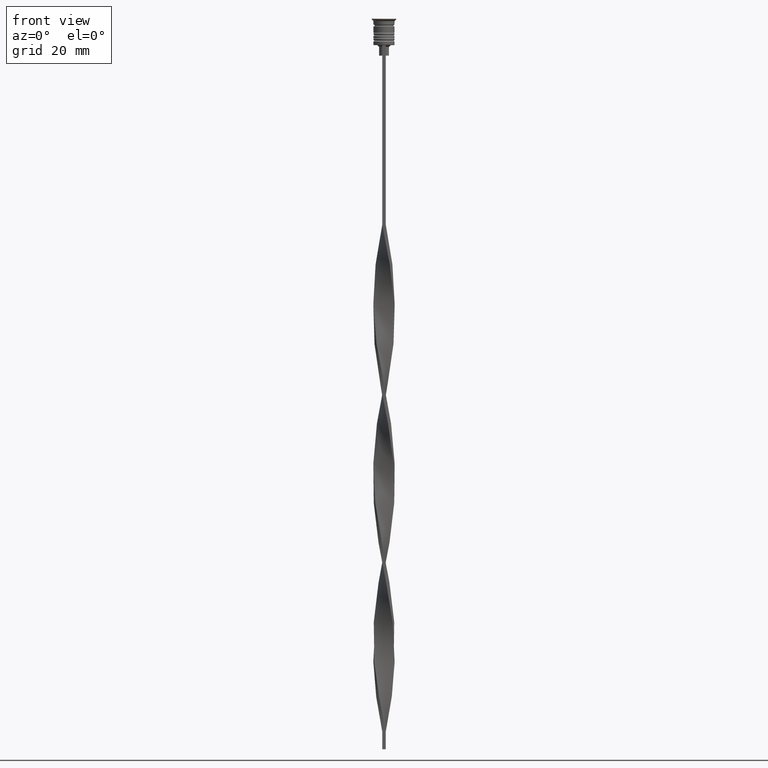
[diagram: clean part render]
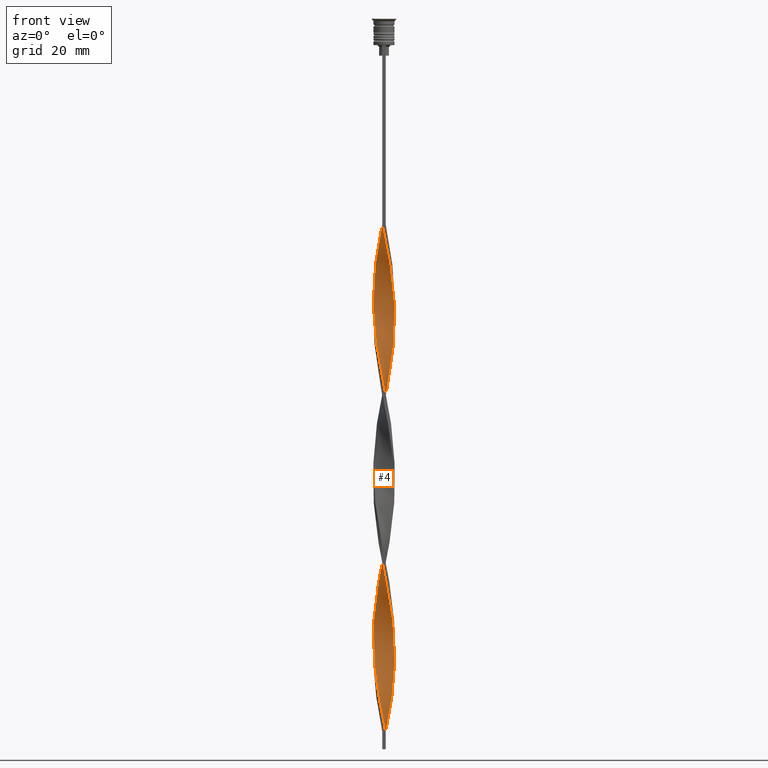
[diagram: same view with one face highlighted and labeled with its STEP entity id]
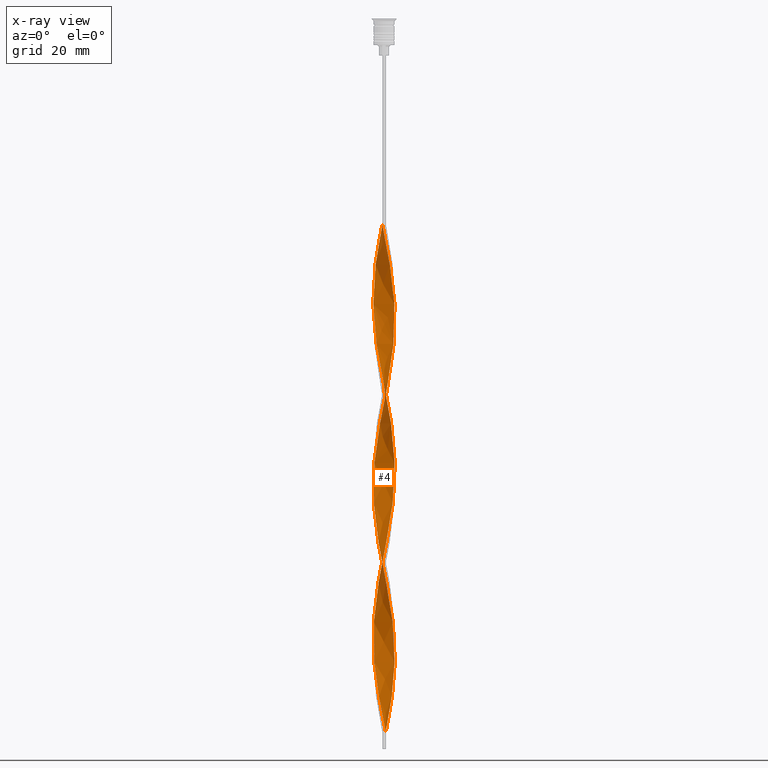
[diagram: x-ray of the same camera — body ghosted, the highlighted face saturated]
A machine part, front view. The second image highlights one B-rep face of the part: STEP entity #4.
The next image is the same camera in x-ray: the body ghosted, the highlighted face saturated — about 0% of this face is hidden behind the body in this view.
In plain terms, the highlighted face is a freeform B-spline surface patch.
Its self-contained STEP definition (entity closure, byte-faithful):
#2 = CARTESIAN_POINT ( 'NONE',  ( 0.3415330684894318236, 3.035256292798965916, -150.2647058823529278 ) ) ;
#4 = ADVANCED_FACE ( 'NONE', ( #2337 ), #1250, .T. ) ;
#10 = CARTESIAN_POINT ( 'NONE',  ( -2.748645434482415606, 1.301901791802659192, -126.2647058823529420 ) ) ;
#20 = CARTESIAN_POINT ( 'NONE',  ( 1.154187920767260067, -2.813867488627520785, -66.97058823529411598 ) ) ;
#25 = CARTESIAN_POINT ( 'NONE',  ( -1.414931142305389411, 2.706916227440719691, -116.3823529411764781 ) ) ;
#36 = CARTESIAN_POINT ( 'NONE',  ( -2.462620696176918589, 1.784796713007145375, -123.4411764705882177 ) ) ;
#44 = CARTESIAN_POINT ( 'NONE',  ( 2.825922375284401156, 1.159132575987104286, -186.9705882352941444 ) ) ;
#60 = CARTESIAN_POINT ( 'NONE',  ( 0.3415330684894317681, 3.035256292798965916, -150.2647058823528994 ) ) ;
#80 = CARTESIAN_POINT ( 'NONE',  ( -2.869284401559882625, -1.047202283617009844, -181.3235294117646959 ) ) ;
#85 = CARTESIAN_POINT ( 'NONE',  ( 3.053821120486486240, 0.06001802994261470209, -181.3235294117646959 ) ) ;
#97 = CARTESIAN_POINT ( 'NONE',  ( 1.888233802353294744, -2.400832919529793941, -71.20588235294118817 ) ) ;
#100 = CARTESIAN_POINT ( 'NONE',  ( -1.154187920767260067, -2.813867488627520785, -194.0294117647058556 ) ) ;
#119 = CARTESIAN_POINT ( 'NONE',  ( -2.004405056496874504, 2.287435325750164505, -162.9705882352940876 ) ) ;
#120 = CARTESIAN_POINT ( 'NONE',  ( 1.307479267857234895, -2.760420903407855509, -110.7352941176470438 ) ) ;
#139 = CARTESIAN_POINT ( 'NONE',  ( 2.216367154323709787, -2.101699844669203454, -116.3823529411764781 ) ) ;
#144 = CARTESIAN_POINT ( 'NONE',  ( -0.7779909387260895981, -2.953668176878986529, -153.0882352941176237 ) ) ;
#151 = CARTESIAN_POINT ( 'NONE',  ( 0.5000000000000002220, 1.000000000000000000, -202.4999999999999716 ) ) ;
#156 = CARTESIAN_POINT ( 'NONE',  ( -2.092734363651090668, -2.206912522777888963, -92.38235294117646390 ) ) ;
#178 = CARTESIAN_POINT ( 'NONE',  ( 3.053821120486486684, -0.06001802994261339758, -127.6764705882352615 ) ) ;
#190 = CARTESIAN_POINT ( 'NONE',  ( -2.908359051953456564, 0.8896334216520835891, -75.44117647058823195 ) ) ;
#200 = CARTESIAN_POINT ( 'NONE',  ( -2.908359051953456120, -0.8896334216520842553, -137.5588235294117680 ) ) ;
#209 = CARTESIAN_POINT ( 'NONE',  ( -2.216367154323710231, 2.101699844669202566, -68.38235294117646390 ) ) ;
#216 = CARTESIAN_POINT ( 'NONE',  ( -2.564815624776293657, 1.658658015008195097, -167.2058823529411882 ) ) ;
#228 = CARTESIAN_POINT ( 'NONE',  ( 2.564815624776293657, -1.658658015008194653, -119.2058823529411598 ) ) ;
#238 = CARTESIAN_POINT ( 'NONE',  ( 1.154187920767261621, 2.813867488627519897, -146.0294117647058556 ) ) ;
#257 = CARTESIAN_POINT ( 'NONE',  ( 1.888233802353293633, 2.400832919529794385, -141.7941176470588118 ) ) ;
#261 = CARTESIAN_POINT ( 'NONE',  ( 2.825922375284401156, 1.159132575987104286, -186.9705882352941444 ) ) ;
#265 = CARTESIAN_POINT ( 'NONE',  ( 2.941068349153452388, -0.7746721665374233234, -81.08823529411763786 ) ) ;
#275 = CARTESIAN_POINT ( 'NONE',  ( -1.042735103291662080, 2.857044540143419908, -157.3235294117646959 ) ) ;
#281 = CARTESIAN_POINT ( 'NONE',  ( 0.6174888838592809126, -2.978037521306644120, -64.14705882352940591 ) ) ;
#291 = CARTESIAN_POINT ( 'NONE',  ( 0.4999999999999997780, -3.000000000000000000, -202.4999999999999716 ) ) ;
#303 = CARTESIAN_POINT ( 'NONE',  ( -1.888233802353294744, 2.400832919529793497, -119.2058823529411598 ) ) ;
#318 = CARTESIAN_POINT ( 'NONE',  ( -1.414931142305389633, 2.706916227440719691, -116.3823529411764781 ) ) ;
#323 = CARTESIAN_POINT ( 'NONE',  ( 2.564815624776293657, 1.658658015008195097, -93.79411764705882604 ) ) ;
#335 = CARTESIAN_POINT ( 'NONE',  ( -2.628006467404950364, 1.556601299988307430, -124.8529411764705799 ) ) ;
#339 = CARTESIAN_POINT ( 'NONE',  ( 0.05976200360775915654, 3.040794057959990582, -151.6764705882353041 ) ) ;
#341 = CARTESIAN_POINT ( 'NONE',  ( -3.022308424554498441, 0.3400761486298386482, -78.26470588235292780 ) ) ;
#355 = CARTESIAN_POINT ( 'NONE',  ( 3.012852296747023484, -0.5021420494578375804, -82.49999999999998579 ) ) ;
#359 = CARTESIAN_POINT ( 'NONE',  ( 2.092734363651091112, 2.206912522777888519, -140.3823529411764639 ) ) ;
#366 = CARTESIAN_POINT ( 'NONE',  ( 3.022308424554498885, 0.3400761486298390923, -182.7352941176470438 ) ) ;
#382 = CARTESIAN_POINT ( 'NONE',  ( 1.792442958670039443, 2.473170806831126001, -99.44117647058823195 ) ) ;
#387 = CARTESIAN_POINT ( 'NONE',  ( -1.792442958670039221, 2.473170806831127333, -161.5588235294117680 ) ) ;
#391 = CARTESIAN_POINT ( 'NONE',  ( 1.792442958670039665, 2.473170806831126445, -195.4411764705882604 ) ) ;
#402 = CARTESIAN_POINT ( 'NONE',  ( 0.5000000000000004441, 3.000000000000000000, -106.4999999999999858 ) ) ;
#405 = CARTESIAN_POINT ( 'NONE',  ( -2.825922375284401156, 1.159132575987103841, -170.0294117647058840 ) ) ;
#406 = CARTESIAN_POINT ( 'NONE',  ( -2.908359051953456564, 0.8896334216520835891, -75.44117647058823195 ) ) ;
#409 = CARTESIAN_POINT ( 'NONE',  ( 1.307479267857235339, 2.760420903407855064, -198.2647058823529562 ) ) ;
#421 = DIRECTION ( 'NONE',  ( 0.000000000000000000, 1.000000000000000000, 0.000000000000000000 ) ) ;
#422 = CARTESIAN_POINT ( 'NONE',  ( 0.7779909387260895981, -2.953668176878985641, -107.9117647058823621 ) ) ;
#426 = CARTESIAN_POINT ( 'NONE',  ( 0.05976200360776001697, -3.040794057959990582, -157.3235294117646959 ) ) ;
#448 = CARTESIAN_POINT ( 'NONE',  ( 2.941068349153452388, -0.7746721665374233234, -177.0882352941176237 ) ) ;
#450 = CARTESIAN_POINT ( 'NONE',  ( -2.825922375284401156, -1.159132575987104063, -138.9705882352941160 ) ) ;
#463 = CARTESIAN_POINT ( 'NONE',  ( -2.628006467404950364, -1.556601299988307208, -88.14705882352940591 ) ) ;
#467 = CARTESIAN_POINT ( 'NONE',  ( 0.8934446992291309453, -2.920818749814322324, -161.5588235294117396 ) ) ;
#474 = CARTESIAN_POINT ( 'NONE',  ( -1.307479267857234673, 2.760420903407855509, -62.73529411764705799 ) ) ;
#478 = CARTESIAN_POINT ( 'NONE',  ( 1.549961113263637280, -2.616795855119490533, -112.1470588235294059 ) ) ;
#481 = CARTESIAN_POINT ( 'NONE',  ( -3.022308424554498441, -0.3400761486298386482, -134.7352941176470722 ) ) ;
#513 = CARTESIAN_POINT ( 'NONE',  ( -0.7779909387260893761, 2.953668176878985641, -59.91176470588236214 ) ) ;
#518 = CARTESIAN_POINT ( 'NONE',  ( -1.792442958670038999, 2.473170806831126889, -161.5588235294117396 ) ) ;
#522 = CARTESIAN_POINT ( 'NONE',  ( 1.651582472329342188, -2.553874573485256150, -165.7941176470588118 ) ) ;
#530 = CARTESIAN_POINT ( 'NONE',  ( 0.7779909387260895981, -2.953668176878985641, -107.9117647058823621 ) ) ;
#554 = CARTESIAN_POINT ( 'NONE',  ( -2.462620696176917701, -1.784796713007145819, -185.5588235294117396 ) ) ;
#561 = CARTESIAN_POINT ( 'NONE',  ( -2.695369000030346740, 1.408895295497649469, -72.61764705882352189 ) ) ;
#565 = CARTESIAN_POINT ( 'NONE',  ( -2.990795728622511973, -0.6201342673170625597, -136.1470588235294201 ) ) ;
#574 = CARTESIAN_POINT ( 'NONE',  ( -2.695369000030346740, 1.408895295497649469, -168.6176470588235077 ) ) ;
#579 = CARTESIAN_POINT ( 'NONE',  ( 1.792442958670039665, 2.473170806831126445, -99.44117647058823195 ) ) ;
#585 = CARTESIAN_POINT ( 'NONE',  ( -0.3415330684894314350, -3.035256292798966360, -198.2647058823529562 ) ) ;
#590 = CARTESIAN_POINT ( 'NONE',  ( 3.033336708616754418, -0.2210620097576117826, -83.91176470588234793 ) ) ;
#605 = CARTESIAN_POINT ( 'NONE',  ( -0.2220090612739108182, -3.046331823121014803, -59.91176470588236214 ) ) ;
#613 = CARTESIAN_POINT ( 'NONE',  ( 2.748645434482416050, -1.301901791802658082, -78.26470588235292780 ) ) ;
#624 = CARTESIAN_POINT ( 'NONE',  ( -1.888233802353294744, 2.400832919529793497, -119.2058823529411455 ) ) ;
#626 = CARTESIAN_POINT ( 'NONE',  ( -0.6174888838592809126, -2.978037521306644120, -196.8529411764705515 ) ) ;
#629 = CARTESIAN_POINT ( 'NONE',  ( 1.154187920767260067, -2.813867488627520785, -66.97058823529411598 ) ) ;
#642 = CARTESIAN_POINT ( 'NONE',  ( 3.012852296747023484, 0.5021420494578368032, -130.5000000000000000 ) ) ;
#655 = CARTESIAN_POINT ( 'NONE',  ( 2.390591389550001722, 1.880178929838698387, -95.20588235294117396 ) ) ;
#658 = CARTESIAN_POINT ( 'NONE',  ( -2.990795728622512417, 0.6201342673170636699, -172.8529411764705799 ) ) ;
#664 = CARTESIAN_POINT ( 'NONE',  ( 2.564815624776293657, 1.658658015008195097, -189.7941176470588118 ) ) ;
#675 = CARTESIAN_POINT ( 'NONE',  ( -0.5000000000000001110, 3.000000000000000000, -58.50000000000000000 ) ) ;
#680 = CARTESIAN_POINT ( 'NONE',  ( -2.092734363651089780, 2.206912522777889851, -120.6176470588235219 ) ) ;
#681 = ORIENTED_EDGE ( 'NONE', *, *, #2346, .F. ) ;
#684 = CARTESIAN_POINT ( 'NONE',  ( -1.651582472329342632, -2.553874573485255706, -191.2058823529411598 ) ) ;
#689 = CARTESIAN_POINT ( 'NONE',  ( 1.414931142305390077, -2.706916227440719691, -164.3823529411764923 ) ) ;
#701 = CARTESIAN_POINT ( 'NONE',  ( -2.390591389550001278, 1.880178929838698831, -165.7941176470588118 ) ) ;
#705 = CARTESIAN_POINT ( 'NONE',  ( 2.695369000030346740, 1.408895295497649247, -188.3823529411764355 ) ) ;
#713 = CARTESIAN_POINT ( 'NONE',  ( -2.092734363651090668, -2.206912522777888963, -92.38235294117646390 ) ) ;
#718 = CARTESIAN_POINT ( 'NONE',  ( -0.6174888838592809126, -2.978037521306644120, -100.8529411764705941 ) ) ;
#722 = CARTESIAN_POINT ( 'NONE',  ( -3.012852296747023484, 0.5021420494578379135, -130.5000000000000000 ) ) ;
#743 = CARTESIAN_POINT ( 'NONE',  ( 2.941068349153452388, -0.7746721665374233234, -177.0882352941176237 ) ) ;
#757 = CARTESIAN_POINT ( 'NONE',  ( -1.651582472329342632, -2.553874573485255706, -95.20588235294117396 ) ) ;
#763 = CARTESIAN_POINT ( 'NONE',  ( -1.549961113263637058, -2.616795855119490533, -148.8529411764705799 ) ) ;
#781 = CARTESIAN_POINT ( 'NONE',  ( -3.053821120486486240, -0.06001802994261502822, -133.3235294117647243 ) ) ;
#799 = CARTESIAN_POINT ( 'NONE',  ( 2.748645434482416050, -1.301901791802658082, -174.2647058823529278 ) ) ;
#808 = CARTESIAN_POINT ( 'NONE',  ( 0.4999999999999997780, -3.000000000000000000, -106.4999999999999858 ) ) ;
#833 = CARTESIAN_POINT ( 'NONE',  ( -3.033336708616754418, 0.2210620097576128096, -131.9117647058823479 ) ) ;
#846 = CARTESIAN_POINT ( 'NONE',  ( -2.869284401559882625, -1.047202283617009844, -181.3235294117646674 ) ) ;
#856 = CARTESIAN_POINT ( 'NONE',  ( -1.042735103291662080, 2.857044540143419908, -61.32352941176470296 ) ) ;
#858 = CARTESIAN_POINT ( 'NONE',  ( 3.022308424554498885, 0.3400761486298390923, -86.73529411764704378 ) ) ;
#866 = CARTESIAN_POINT ( 'NONE',  ( -0.6174888838592809126, -2.978037521306644120, -196.8529411764705515 ) ) ;
#875 = CARTESIAN_POINT ( 'NONE',  ( -0.3415330684894307689, 3.035256292798965916, -110.7352941176470438 ) ) ;
#890 = CARTESIAN_POINT ( 'NONE',  ( 2.695369000030346740, 1.408895295497649247, -92.38235294117646390 ) ) ;
#902 = CARTESIAN_POINT ( 'NONE',  ( 3.053821120486486240, 0.06001802994261470209, -85.32352941176469585 ) ) ;
#905 = CARTESIAN_POINT ( 'NONE',  ( 2.990795728622512417, -0.6201342673170634479, -124.8529411764705799 ) ) ;
#910 = CARTESIAN_POINT ( 'NONE',  ( -2.941068349153452832, 0.7746721665374232124, -129.0882352941176521 ) ) ;
#923 = CARTESIAN_POINT ( 'NONE',  ( 0.6174888838592809126, -2.978037521306644120, -64.14705882352940591 ) ) ;
#926 = CARTESIAN_POINT ( 'NONE',  ( -2.390591389550000834, -1.880178929838698831, -143.2058823529411882 ) ) ;
#934 = CARTESIAN_POINT ( 'NONE',  ( 2.695369000030346740, 1.408895295497649247, -92.38235294117646390 ) ) ;
#937 = CARTESIAN_POINT ( 'NONE',  ( -1.549961113263636836, 2.616795855119490533, -160.1470588235293917 ) ) ;
#940 = CARTESIAN_POINT ( 'NONE',  ( -1.042735103291661192, -2.857044540143419908, -151.6764705882353041 ) ) ;
#953 = CARTESIAN_POINT ( 'NONE',  ( -2.941068349153452832, -0.7746721665374231014, -179.9117647058823195 ) ) ;
#960 = CARTESIAN_POINT ( 'NONE',  ( 2.990795728622512417, 0.6201342673170633368, -184.1470588235293917 ) ) ;
#975 = CARTESIAN_POINT ( 'NONE',  ( -2.564815624776293657, 1.658658015008195097, -167.2058823529411882 ) ) ;
#979 = CARTESIAN_POINT ( 'NONE',  ( 2.908359051953456564, 0.8896334216520833671, -185.5588235294117396 ) ) ;
#987 = CARTESIAN_POINT ( 'NONE',  ( -2.869284401559882625, -1.047202283617009844, -85.32352941176469585 ) ) ;
#992 = CARTESIAN_POINT ( 'NONE',  ( 2.297234924948886370, 2.012992126025985318, -138.9705882352941160 ) ) ;
#1003 = CARTESIAN_POINT ( 'NONE',  ( -1.792442958670039221, 2.473170806831127333, -65.55882352941178226 ) ) ;
#1008 = CARTESIAN_POINT ( 'NONE',  ( -2.462620696176917701, -1.784796713007145819, -89.55882352941175384 ) ) ;
#1014 = CARTESIAN_POINT ( 'NONE',  ( -2.990795728622511529, -0.6201342673170624487, -136.1470588235294201 ) ) ;
#1036 = CARTESIAN_POINT ( 'NONE',  ( -2.216367154323710675, -2.101699844669202566, -144.6176470588235361 ) ) ;
#1043 = CARTESIAN_POINT ( 'NONE',  ( -2.990795728622512417, 0.6201342673170636699, -76.85294117647059409 ) ) ;
#1047 = CARTESIAN_POINT ( 'NONE',  ( 3.033336708616754418, 0.2210620097576116716, -129.0882352941176521 ) ) ;
#1052 = CARTESIAN_POINT ( 'NONE',  ( 0.6174888838592809126, -2.978037521306644120, -160.1470588235293917 ) ) ;
#1060 = CARTESIAN_POINT ( 'NONE',  ( -3.033336708616754862, -0.2210620097576112830, -81.08823529411763786 ) ) ;
#1078 = CARTESIAN_POINT ( 'NONE',  ( 0.2220090612739113178, -3.046331823121015692, -105.0882352941176521 ) ) ;
#1099 = CARTESIAN_POINT ( 'NONE',  ( 2.092734363651091112, 2.206912522777888519, -140.3823529411764639 ) ) ;
#1103 = CARTESIAN_POINT ( 'NONE',  ( -2.216367154323710675, 2.101699844669202566, -68.38235294117646390 ) ) ;
#1105 = ORIENTED_EDGE ( 'NONE', *, *, #1823, .T. ) ;
#1106 = CARTESIAN_POINT ( 'NONE',  ( 0.7779909387260891540, 2.953668176878986529, -105.0882352941176521 ) ) ;
#1115 = CARTESIAN_POINT ( 'NONE',  ( -2.825922375284401156, 1.159132575987104063, -170.0294117647058556 ) ) ;
#1119 = CARTESIAN_POINT ( 'NONE',  ( 1.042735103291662080, 2.857044540143419908, -199.6764705882352757 ) ) ;
#1122 = CARTESIAN_POINT ( 'NONE',  ( 1.042735103291662080, 2.857044540143419908, -103.6764705882352899 ) ) ;
#1131 = CARTESIAN_POINT ( 'NONE',  ( 0.05976200360775915654, 3.040794057959990582, -151.6764705882353041 ) ) ;
#1141 = CARTESIAN_POINT ( 'NONE',  ( 3.012852296747023484, -0.5021420494578375804, -82.49999999999998579 ) ) ;
#1152 = CARTESIAN_POINT ( 'NONE',  ( -1.792442958670038999, 2.473170806831126889, -65.55882352941179647 ) ) ;
#1156 = CARTESIAN_POINT ( 'NONE',  ( 1.651582472329342188, -2.553874573485256150, -69.79411764705881183 ) ) ;
#1164 = CARTESIAN_POINT ( 'NONE',  ( 2.462620696176917701, -1.784796713007146041, -75.44117647058823195 ) ) ;
#1170 = CARTESIAN_POINT ( 'NONE',  ( 0.3415330684894307689, -3.035256292798965916, -62.73529411764705799 ) ) ;
#1187 = CARTESIAN_POINT ( 'NONE',  ( -2.462620696176917701, -1.784796713007145819, -185.5588235294117396 ) ) ;
#1193 = CARTESIAN_POINT ( 'NONE',  ( 1.888233802353294744, -2.400832919529793941, -167.2058823529411882 ) ) ;
#1206 = CARTESIAN_POINT ( 'NONE',  ( 2.869284401559882625, -1.047202283617009400, -79.67647058823528994 ) ) ;
#1209 = CARTESIAN_POINT ( 'NONE',  ( -0.2220090612739109570, 3.046331823121016136, -153.0882352941176237 ) ) ;
#1223 = CARTESIAN_POINT ( 'NONE',  ( 1.651582472329342188, -2.553874573485256150, -69.79411764705881183 ) ) ;
#1225 = CARTESIAN_POINT ( 'NONE',  ( -2.748645434482415606, -1.301901791802658526, -182.7352941176470438 ) ) ;
#1227 = CARTESIAN_POINT ( 'NONE',  ( -1.549961113263637058, -2.616795855119490533, -148.8529411764705799 ) ) ;
#1239 = CARTESIAN_POINT ( 'NONE',  ( 1.414931142305390299, -2.706916227440719691, -68.38235294117646390 ) ) ;
#1241 = CARTESIAN_POINT ( 'NONE',  ( -0.8934446992291313894, -2.920818749814322324, -195.4411764705882604 ) ) ;
#1250 =( BOUNDED_SURFACE ( )  B_SPLINE_SURFACE ( 1, 2, ( 
 ( #3165, #605, #2315, #2665, #923, #2947, #20, #1239, #1223, #97, #2089, #2632, #1164, #2964, #3466, #1206, #3204, #355, #2052, #902, #2921, #2391, #2356, #2372, #934, #3505, #655, #1768, #1788, #382, #1511, #3544, #3522, #2651, #402, #2010, #3241, #1528, #3489, #1737, #2034, #318, #3184, #624, #680, #2904, #36, #335, #1469, #2608, #1813, #722, #1856, #781, #481, #1014, #200, #450, #1311, #3587, #1929, #1036, #1577, #1906, #763, #2717, #3327, #144, #1591, #2462, #1348, #2751, #1052, #467, #1292, #2774, #522, #3061, #1630, #2491, #3361, #2439, #799, #3083, #743, #1873, #2156, #3308, #1649, #1277, #1717, #261, #2285, #1983, #3150, #1392, #2559, #1367, #2507, #3417, #1119, #3682, #3102 ),
 ( #3720, #3438, #856, #2869, #2580, #1152, #2816, #1103, #1962, #3116, #561, #2968, #406, #2397, #341, #2596, #2038, #3189, #1754, #2744, #2128, #463, #1008, #3610, #156, #2986, #757, #3627, #1570, #1588, #718, #3037, #3336, #2173, #1848, #422, #2712, #120, #478, #3022, #2434, #139, #2769, #1306, #1624, #2147, #2204, #3639, #3304, #178, #1047, #2186, #3353, #1834, #1271, #2418, #3564, #992, #1099, #257, #1389, #2810, #238, #2244, #2538, #2, #1131, #2866, #3146, #2522, #275, #1403, #3679, #518, #3132, #3696, #1645, #216, #574, #1115, #1361, #1991, #2835, #2555, #3394, #1958, #2260, #846, #3110, #1698, #554, #3410, #2850, #2790, #1419, #3712, #2280, #3431, #866, #585, #1435, #1714, #291 ) ),
 .UNSPECIFIED., .F., .F., .F. ) 
 B_SPLINE_SURFACE_WITH_KNOTS ( ( 2, 2 ),
 ( 3, 2, 2, 2, 2, 2, 2, 2, 2, 2, 2, 2, 2, 2, 2, 2, 2, 2, 2, 2, 2, 2, 2, 2, 2, 2, 2, 2, 2, 2, 2, 2, 2, 2, 2, 2, 2, 2, 2, 2, 2, 2, 2, 2, 2, 2, 2, 2, 2, 2, 2, 3 ),
 ( 0.000000000000000000, 1.000000000000000000 ),
 ( 0.000000000000000000, 0.01470588235294117627, 0.02941176470588235253, 0.04411764705882353227, 0.05882352941176470507, 0.07352941176470588480, 0.08823529411764706454, 0.1029411764705882304, 0.1176470588235294101, 0.1323529411764705899, 0.1470588235294117696, 0.1617647058823529493, 0.1764705882352941291, 0.1911764705882352811, 0.2058823529411764608, 0.2205882352941176405, 0.2352941176470588203, 0.2500000000000000000, 0.2647058823529411797, 0.2794117647058823595, 0.2941176470588235392, 0.3088235294117647189, 0.3235294117647058987, 0.3382352941176470784, 0.3529411764705882582, 0.3676470588235294379, 0.3823529411764705621, 0.3970588235294117418, 0.4117647058823529216, 0.4264705882352941013, 0.4411764705882352811, 0.4558823529411764608, 0.4705882352941176405, 0.4852941176470588203, 0.5000000000000000000, 0.5147058823529411242, 0.5294117647058823595, 0.5441176470588234837, 0.5588235294117647189, 0.5735294117647058432, 0.5882352941176470784, 0.6029411764705882026, 0.6176470588235294379, 0.6323529411764705621, 0.6470588235294117974, 0.6617647058823529216, 0.6764705882352941568, 0.6911764705882352811, 0.7058823529411765163, 0.7205882352941176405, 0.7352941176470588758, 0.7500000000000000000 ),
 .UNSPECIFIED. ) 
 GEOMETRIC_REPRESENTATION_ITEM ( )  RATIONAL_B_SPLINE_SURFACE ( (
 ( 1.000000000000000000, 0.9957341762950344677, 1.000000000000000000, 0.9957341762950344677, 1.000000000000000000, 0.9957341762950344677, 1.000000000000000000, 0.9957341762950344677, 1.000000000000000000, 0.9957341762950344677, 1.000000000000000000, 0.9957341762950344677, 1.000000000000000000, 0.9957341762950344677, 1.000000000000000000, 0.9957341762950344677, 1.000000000000000000, 0.9957341762950344677, 1.000000000000000000, 0.9957341762950344677, 1.000000000000000000, 0.9957341762950344677, 1.000000000000000000, 0.9957341762950344677, 1.000000000000000000, 0.9957341762950344677, 1.000000000000000000, 0.9957341762950344677, 1.000000000000000000, 0.9957341762950344677, 1.000000000000000000, 0.9957341762950344677, 1.000000000000000000, 0.9957341762950344677, 1.000000000000000000, 0.9957341762950344677, 1.000000000000000000, 0.9957341762950344677, 1.000000000000000000, 0.9957341762950344677, 1.000000000000000000, 0.9957341762950344677, 1.000000000000000000, 0.9957341762950344677, 1.000000000000000000, 0.9957341762950344677, 1.000000000000000000, 0.9957341762950344677, 1.000000000000000000, 0.9957341762950344677, 1.000000000000000000, 0.9957341762950344677, 1.000000000000000000, 0.9957341762950344677, 1.000000000000000000, 0.9957341762950344677, 1.000000000000000000, 0.9957341762950344677, 1.000000000000000000, 0.9957341762950344677, 1.000000000000000000, 0.9957341762950344677, 1.000000000000000000, 0.9957341762950344677, 1.000000000000000000, 0.9957341762950344677, 1.000000000000000000, 0.9957341762950344677, 1.000000000000000000, 0.9957341762950344677, 1.000000000000000000, 0.9957341762950344677, 1.000000000000000000, 0.9957341762950344677, 1.000000000000000000, 0.9957341762950344677, 1.000000000000000000, 0.9957341762950344677, 1.000000000000000000, 0.9957341762950344677, 1.000000000000000000, 0.9957341762950344677, 1.000000000000000000, 0.9957341762950344677, 1.000000000000000000, 0.9957341762950344677, 1.000000000000000000, 0.9957341762950344677, 1.000000000000000000, 0.9957341762950344677, 1.000000000000000000, 0.9957341762950344677, 1.000000000000000000, 0.9957341762950344677, 1.000000000000000000, 0.9957341762950344677, 1.000000000000000000, 0.9957341762950344677, 1.000000000000000000, 0.9957341762950344677, 1.000000000000000000, 0.9957341762950344677, 1.000000000000000000),
 ( 1.000000000000000000, 0.9957341762950344677, 1.000000000000000000, 0.9957341762950344677, 1.000000000000000000, 0.9957341762950344677, 1.000000000000000000, 0.9957341762950344677, 1.000000000000000000, 0.9957341762950344677, 1.000000000000000000, 0.9957341762950344677, 1.000000000000000000, 0.9957341762950344677, 1.000000000000000000, 0.9957341762950344677, 1.000000000000000000, 0.9957341762950344677, 1.000000000000000000, 0.9957341762950344677, 1.000000000000000000, 0.9957341762950344677, 1.000000000000000000, 0.9957341762950344677, 1.000000000000000000, 0.9957341762950344677, 1.000000000000000000, 0.9957341762950344677, 1.000000000000000000, 0.9957341762950344677, 1.000000000000000000, 0.9957341762950344677, 1.000000000000000000, 0.9957341762950344677, 1.000000000000000000, 0.9957341762950344677, 1.000000000000000000, 0.9957341762950344677, 1.000000000000000000, 0.9957341762950344677, 1.000000000000000000, 0.9957341762950344677, 1.000000000000000000, 0.9957341762950344677, 1.000000000000000000, 0.9957341762950344677, 1.000000000000000000, 0.9957341762950344677, 1.000000000000000000, 0.9957341762950344677, 1.000000000000000000, 0.9957341762950344677, 1.000000000000000000, 0.9957341762950344677, 1.000000000000000000, 0.9957341762950344677, 1.000000000000000000, 0.9957341762950344677, 1.000000000000000000, 0.9957341762950344677, 1.000000000000000000, 0.9957341762950344677, 1.000000000000000000, 0.9957341762950344677, 1.000000000000000000, 0.9957341762950344677, 1.000000000000000000, 0.9957341762950344677, 1.000000000000000000, 0.9957341762950344677, 1.000000000000000000, 0.9957341762950344677, 1.000000000000000000, 0.9957341762950344677, 1.000000000000000000, 0.9957341762950344677, 1.000000000000000000, 0.9957341762950344677, 1.000000000000000000, 0.9957341762950344677, 1.000000000000000000, 0.9957341762950344677, 1.000000000000000000, 0.9957341762950344677, 1.000000000000000000, 0.9957341762950344677, 1.000000000000000000, 0.9957341762950344677, 1.000000000000000000, 0.9957341762950344677, 1.000000000000000000, 0.9957341762950344677, 1.000000000000000000, 0.9957341762950344677, 1.000000000000000000, 0.9957341762950344677, 1.000000000000000000, 0.9957341762950344677, 1.000000000000000000, 0.9957341762950344677, 1.000000000000000000, 0.9957341762950344677, 1.000000000000000000) ) ) 
 REPRESENTATION_ITEM ( '' )  SURFACE ( )  );
#1271 = CARTESIAN_POINT ( 'NONE',  ( 2.748645434482416050, 1.301901791802658082, -134.7352941176470722 ) ) ;
#1277 = CARTESIAN_POINT ( 'NONE',  ( 2.990795728622511973, 0.6201342673170632258, -184.1470588235293917 ) ) ;
#1292 = CARTESIAN_POINT ( 'NONE',  ( 1.154187920767260067, -2.813867488627520785, -162.9705882352940876 ) ) ;
#1306 = CARTESIAN_POINT ( 'NONE',  ( 2.564815624776293657, -1.658658015008194653, -119.2058823529411455 ) ) ;
#1311 = CARTESIAN_POINT ( 'NONE',  ( -2.695369000030347184, -1.408895295497648581, -140.3823529411764639 ) ) ;
#1339 = CARTESIAN_POINT ( 'NONE',  ( -2.390591389550001278, 1.880178929838698831, -69.79411764705881183 ) ) ;
#1348 = CARTESIAN_POINT ( 'NONE',  ( 0.05976200360776001697, -3.040794057959990582, -157.3235294117646959 ) ) ;
#1354 = CARTESIAN_POINT ( 'NONE',  ( -1.042735103291662080, 2.857044540143419908, -61.32352941176470296 ) ) ;
#1361 = CARTESIAN_POINT ( 'NONE',  ( -2.908359051953456564, 0.8896334216520835891, -171.4411764705882035 ) ) ;
#1367 = CARTESIAN_POINT ( 'NONE',  ( 1.792442958670039443, 2.473170806831126001, -195.4411764705882604 ) ) ;
#1389 = CARTESIAN_POINT ( 'NONE',  ( 1.651582472329341522, 2.553874573485256150, -143.2058823529411882 ) ) ;
#1392 = CARTESIAN_POINT ( 'NONE',  ( 2.216367154323710675, 2.101699844669202566, -192.6176470588235077 ) ) ;
#1403 = CARTESIAN_POINT ( 'NONE',  ( -1.307479267857234895, 2.760420903407855509, -158.7352941176470154 ) ) ;
#1409 = CARTESIAN_POINT ( 'NONE',  ( -2.825922375284401156, -1.159132575987103841, -138.9705882352941160 ) ) ;
#1419 = CARTESIAN_POINT ( 'NONE',  ( -1.651582472329342632, -2.553874573485255706, -191.2058823529411598 ) ) ;
#1425 = CARTESIAN_POINT ( 'NONE',  ( 2.092734363651089780, -2.206912522777889407, -72.61764705882352189 ) ) ;
#1435 = CARTESIAN_POINT ( 'NONE',  ( -0.05976200360776012799, -3.040794057959990582, -199.6764705882352757 ) ) ;
#1444 = CARTESIAN_POINT ( 'NONE',  ( -2.092734363651089780, 2.206912522777889851, -120.6176470588235219 ) ) ;
#1460 = CARTESIAN_POINT ( 'NONE',  ( 2.216367154323710231, 2.101699844669202566, -96.61764705882355031 ) ) ;
#1469 = CARTESIAN_POINT ( 'NONE',  ( -2.748645434482415606, 1.301901791802659192, -126.2647058823529420 ) ) ;
#1472 = CARTESIAN_POINT ( 'NONE',  ( -0.05976200360776012799, -3.040794057959990582, -199.6764705882352757 ) ) ;
#1477 = CARTESIAN_POINT ( 'NONE',  ( 0.8934446992291309453, -2.920818749814322324, -65.55882352941178226 ) ) ;
#1493 = CARTESIAN_POINT ( 'NONE',  ( 2.628006467404950808, 1.556601299988306542, -136.1470588235294201 ) ) ;
#1511 = CARTESIAN_POINT ( 'NONE',  ( 1.549961113263636836, 2.616795855119490533, -100.8529411764705941 ) ) ;
#1513 = CARTESIAN_POINT ( 'NONE',  ( -3.012852296747023484, -0.5021420494578371363, -178.5000000000000000 ) ) ;
#1516 = CARTESIAN_POINT ( 'NONE',  ( -0.7779909387260895981, -2.953668176878986085, -153.0882352941176237 ) ) ;
#1528 = CARTESIAN_POINT ( 'NONE',  ( -0.3415330684894307689, 3.035256292798965916, -110.7352941176470438 ) ) ;
#1532 = CARTESIAN_POINT ( 'NONE',  ( -1.414931142305390077, -2.706916227440719691, -192.6176470588235077 ) ) ;
#1535 = CARTESIAN_POINT ( 'NONE',  ( -1.792442958670038777, -2.473170806831127333, -147.4411764705882320 ) ) ;
#1549 = CARTESIAN_POINT ( 'NONE',  ( 0.8934446992291303902, 2.920818749814322324, -147.4411764705882320 ) ) ;
#1564 = CARTESIAN_POINT ( 'NONE',  ( 0.4999999999999997780, -3.000000000000000000, -202.4999999999999716 ) ) ;
#1570 = CARTESIAN_POINT ( 'NONE',  ( -1.154187920767260067, -2.813867488627520785, -98.02941176470588402 ) ) ;
#1577 = CARTESIAN_POINT ( 'NONE',  ( -2.004405056496875837, -2.287435325750163617, -146.0294117647058556 ) ) ;
#1583 = CARTESIAN_POINT ( 'NONE',  ( -0.6174888838592809126, -2.978037521306644120, -100.8529411764705941 ) ) ;
#1588 = CARTESIAN_POINT ( 'NONE',  ( -0.8934446992291313894, -2.920818749814322324, -99.44117647058823195 ) ) ;
#1591 = CARTESIAN_POINT ( 'NONE',  ( -0.5000000000000001110, -3.000000000000000000, -154.4999999999999716 ) ) ;
#1619 = CARTESIAN_POINT ( 'NONE',  ( -2.564815624776293657, 1.658658015008195097, -71.20588235294118817 ) ) ;
#1624 = CARTESIAN_POINT ( 'NONE',  ( 2.695369000030346740, -1.408895295497649913, -120.6176470588235219 ) ) ;
#1630 = CARTESIAN_POINT ( 'NONE',  ( 2.092734363651089780, -2.206912522777889407, -168.6176470588235077 ) ) ;
#1639 = CARTESIAN_POINT ( 'NONE',  ( -2.462620696176917701, -1.784796713007145819, -89.55882352941175384 ) ) ;
#1645 = CARTESIAN_POINT ( 'NONE',  ( -2.390591389550001278, 1.880178929838698831, -165.7941176470588118 ) ) ;
#1649 = CARTESIAN_POINT ( 'NONE',  ( 3.022308424554498885, 0.3400761486298390923, -182.7352941176470438 ) ) ;
#1658 = CARTESIAN_POINT ( 'NONE',  ( 1.549961113263637280, -2.616795855119490533, -112.1470588235294059 ) ) ;
#1689 = CARTESIAN_POINT ( 'NONE',  ( -2.908359051953456120, -0.8896334216520842553, -137.5588235294117680 ) ) ;
#1698 = CARTESIAN_POINT ( 'NONE',  ( -2.628006467404950364, -1.556601299988307208, -184.1470588235293917 ) ) ;
#1704 = CARTESIAN_POINT ( 'NONE',  ( 3.053821120486486240, 0.06001802994261470209, -85.32352941176469585 ) ) ;
#1714 = CARTESIAN_POINT ( 'NONE',  ( 0.2220090612739113178, -3.046331823121015248, -201.0882352941176237 ) ) ;
#1717 = CARTESIAN_POINT ( 'NONE',  ( 2.908359051953456564, 0.8896334216520833671, -185.5588235294117396 ) ) ;
#1720 = CARTESIAN_POINT ( 'NONE',  ( 2.908359051953456564, 0.8896334216520833671, -89.55882352941175384 ) ) ;
#1737 = CARTESIAN_POINT ( 'NONE',  ( -0.8934446992291307232, 2.920818749814322324, -113.5588235294117538 ) ) ;
#1740 = CARTESIAN_POINT ( 'NONE',  ( 1.888233802353294744, -2.400832919529793941, -71.20588235294118817 ) ) ;
#1753 = CARTESIAN_POINT ( 'NONE',  ( 0.2220090612739113178, -3.046331823121015692, -201.0882352941176237 ) ) ;
#1754 = CARTESIAN_POINT ( 'NONE',  ( -2.941068349153452832, -0.7746721665374231014, -83.91176470588234793 ) ) ;
#1756 = CARTESIAN_POINT ( 'NONE',  ( 2.462620696176917701, -1.784796713007146041, -75.44117647058823195 ) ) ;
#1768 = CARTESIAN_POINT ( 'NONE',  ( 2.216367154323710675, 2.101699844669202566, -96.61764705882353610 ) ) ;
#1771 = CARTESIAN_POINT ( 'NONE',  ( -1.307479267857234673, 2.760420903407855509, -158.7352941176470438 ) ) ;
#1788 = CARTESIAN_POINT ( 'NONE',  ( 2.004405056496874504, 2.287435325750164505, -98.02941176470588402 ) ) ;
#1792 = CARTESIAN_POINT ( 'NONE',  ( -0.5000000000000001110, 3.000000000000000000, -154.4999999999999716 ) ) ;
#1799 = CARTESIAN_POINT ( 'NONE',  ( 2.216367154323710231, 2.101699844669202566, -192.6176470588235077 ) ) ;
#1802 = EDGE_CURVE ( 'NONE', #2309, #3554, #2458, .T. ) ;
#1805 =( BOUNDED_CURVE ( )  B_SPLINE_CURVE ( 2, ( #1986, #2041, #1998, #1170, #281, #1477, #629, #2857, #1156, #1740, #1425, #2563, #1756, #2615, #613, #3724, #265, #1141, #590, #1704, #858, #2251, #1720, #3421, #890, #323, #3139, #1460, #2910, #579, #3454, #2288, #1122, #1106, #3169, #3441, #2599, #875, #3153, #3401, #3703, #25, #2873, #303, #1444, #2307, #2583, #2319, #10, #3473, #910, #3192, #833, #1966, #3121, #565, #1689, #1409, #2545, #2266, #926, #3568, #3512, #1535, #1227, #3227, #940, #1516, #1818, #3010, #426, #2131, #2421, #2075, #3268, #689, #2952, #1193, #2402, #2971, #2342, #3550, #3530, #2656, #448, #2637, #2379, #85, #366, #960, #979, #44, #705, #664, #2930, #1799, #2115, #391, #2100, #409, #1837, #3249, #2673 ),
 .UNSPECIFIED., .F., .T. ) 
 B_SPLINE_CURVE_WITH_KNOTS ( ( 3, 2, 2, 2, 2, 2, 2, 2, 2, 2, 2, 2, 2, 2, 2, 2, 2, 2, 2, 2, 2, 2, 2, 2, 2, 2, 2, 2, 2, 2, 2, 2, 2, 2, 2, 2, 2, 2, 2, 2, 2, 2, 2, 2, 2, 2, 2, 2, 2, 2, 2, 3 ),
 ( 0.000000000000000000, 0.01470588235294117453, 0.02941176470588234906, 0.04411764705882353227, 0.05882352941176469813, 0.07352941176470588480, 0.08823529411764706454, 0.1029411764705882443, 0.1176470588235293963, 0.1323529411764705899, 0.1470588235294117696, 0.1617647058823529493, 0.1764705882352941291, 0.1911764705882352811, 0.2058823529411764885, 0.2205882352941176405, 0.2352941176470587925, 0.2500000000000000000, 0.2647058823529411797, 0.2794117647058823595, 0.2941176470588235392, 0.3088235294117647189, 0.3235294117647058987, 0.3382352941176470229, 0.3529411764705882582, 0.3676470588235294379, 0.3823529411764705621, 0.3970588235294117418, 0.4117647058823529771, 0.4264705882352941013, 0.4411764705882352811, 0.4558823529411764608, 0.4705882352941175850, 0.4852941176470588203, 0.5000000000000000000, 0.5147058823529411242, 0.5294117647058823595, 0.5441176470588234837, 0.5588235294117647189, 0.5735294117647058432, 0.5882352941176470784, 0.6029411764705882026, 0.6176470588235294379, 0.6323529411764705621, 0.6470588235294117974, 0.6617647058823529216, 0.6764705882352940458, 0.6911764705882351700, 0.7058823529411765163, 0.7205882352941176405, 0.7352941176470588758, 0.7500000000000000000 ),
 .UNSPECIFIED. ) 
 CURVE ( )  GEOMETRIC_REPRESENTATION_ITEM ( )  RATIONAL_B_SPLINE_CURVE ( ( 1.000000000000000000, 0.9957341762950344677, 1.000000000000000000, 0.9957341762950344677, 1.000000000000000000, 0.9957341762950344677, 1.000000000000000000, 0.9957341762950344677, 1.000000000000000000, 0.9957341762950344677, 1.000000000000000000, 0.9957341762950344677, 1.000000000000000000, 0.9957341762950344677, 1.000000000000000000, 0.9957341762950344677, 1.000000000000000000, 0.9957341762950344677, 1.000000000000000000, 0.9957341762950344677, 1.000000000000000000, 0.9957341762950344677, 1.000000000000000000, 0.9957341762950344677, 1.000000000000000000, 0.9957341762950344677, 1.000000000000000000, 0.9957341762950344677, 1.000000000000000000, 0.9957341762950344677, 1.000000000000000000, 0.9957341762950344677, 1.000000000000000000, 0.9957341762950344677, 1.000000000000000000, 0.9957341762950344677, 1.000000000000000000, 0.9957341762950344677, 1.000000000000000000, 0.9957341762950344677, 1.000000000000000000, 0.9957341762950344677, 1.000000000000000000, 0.9957341762950344677, 1.000000000000000000, 0.9957341762950344677, 1.000000000000000000, 0.9957341762950344677, 1.000000000000000000, 0.9957341762950344677, 1.000000000000000000, 0.9957341762950344677, 1.000000000000000000, 0.9957341762950344677, 1.000000000000000000, 0.9957341762950344677, 1.000000000000000000, 0.9957341762950344677, 1.000000000000000000, 0.9957341762950344677, 1.000000000000000000, 0.9957341762950344677, 1.000000000000000000, 0.9957341762950344677, 1.000000000000000000, 0.9957341762950344677, 1.000000000000000000, 0.9957341762950344677, 1.000000000000000000, 0.9957341762950344677, 1.000000000000000000, 0.9957341762950344677, 1.000000000000000000, 0.9957341762950344677, 1.000000000000000000, 0.9957341762950344677, 1.000000000000000000, 0.9957341762950344677, 1.000000000000000000, 0.9957341762950344677, 1.000000000000000000, 0.9957341762950344677, 1.000000000000000000, 0.9957341762950344677, 1.000000000000000000, 0.9957341762950344677, 1.000000000000000000, 0.9957341762950344677, 1.000000000000000000, 0.9957341762950344677, 1.000000000000000000, 0.9957341762950344677, 1.000000000000000000, 0.9957341762950344677, 1.000000000000000000, 0.9957341762950344677, 1.000000000000000000, 0.9957341762950344677, 1.000000000000000000, 0.9957341762950344677, 1.000000000000000000, 0.9957341762950344677, 1.000000000000000000 ) ) 
 REPRESENTATION_ITEM ( '' )  );
#1813 = CARTESIAN_POINT ( 'NONE',  ( -2.941068349153452832, 0.7746721665374232124, -129.0882352941176521 ) ) ;
#1815 = CARTESIAN_POINT ( 'NONE',  ( 0.6174888838592811346, 2.978037521306644120, -148.8529411764705799 ) ) ;
#1818 = CARTESIAN_POINT ( 'NONE',  ( -0.5000000000000001110, -3.000000000000000000, -154.4999999999999716 ) ) ;
#1823 = EDGE_CURVE ( 'NONE', #3594, #3554, #3729, .T. ) ;
#1833 = CARTESIAN_POINT ( 'NONE',  ( 2.297234924948885926, 2.012992126025985318, -138.9705882352941160 ) ) ;
#1834 = CARTESIAN_POINT ( 'NONE',  ( 2.869284401559882625, 1.047202283617010066, -133.3235294117647243 ) ) ;
#1836 = EDGE_LOOP ( 'NONE', ( #3434, #1105, #2819, #681 ) ) ;
#1837 = CARTESIAN_POINT ( 'NONE',  ( 1.042735103291662080, 2.857044540143419908, -199.6764705882352757 ) ) ;
#1840 = EDGE_CURVE ( 'NONE', #2671, #3594, #3546, .T. ) ;
#1843 = CARTESIAN_POINT ( 'NONE',  ( -1.888233802353294744, -2.400832919529793941, -93.79411764705882604 ) ) ;
#1848 = CARTESIAN_POINT ( 'NONE',  ( 0.4999999999999997780, -3.000000000000000000, -106.4999999999999858 ) ) ;
#1856 = CARTESIAN_POINT ( 'NONE',  ( -3.033336708616754418, 0.2210620097576128096, -131.9117647058823479 ) ) ;
#1865 = CARTESIAN_POINT ( 'NONE',  ( -0.8934446992291313894, -2.920818749814322324, -99.44117647058823195 ) ) ;
#1873 = CARTESIAN_POINT ( 'NONE',  ( 3.012852296747023484, -0.5021420494578375804, -178.4999999999999716 ) ) ;
#1906 = CARTESIAN_POINT ( 'NONE',  ( -1.792442958670038555, -2.473170806831126889, -147.4411764705882320 ) ) ;
#1919 = CARTESIAN_POINT ( 'NONE',  ( -3.012852296747023484, -0.5021420494578371363, -82.49999999999998579 ) ) ;
#1929 = CARTESIAN_POINT ( 'NONE',  ( -2.390591389550000834, -1.880178929838698831, -143.2058823529411882 ) ) ;
#1938 = CARTESIAN_POINT ( 'NONE',  ( 2.004405056496874948, -2.287435325750164061, -114.9705882352941018 ) ) ;
#1958 = CARTESIAN_POINT ( 'NONE',  ( -3.012852296747023484, -0.5021420494578371363, -178.4999999999999716 ) ) ;
#1962 = CARTESIAN_POINT ( 'NONE',  ( -2.390591389550001278, 1.880178929838698831, -69.79411764705881183 ) ) ;
#1966 = CARTESIAN_POINT ( 'NONE',  ( -3.053821120486486240, -0.06001802994261502128, -133.3235294117646959 ) ) ;
#1983 = CARTESIAN_POINT ( 'NONE',  ( 2.564815624776293657, 1.658658015008195097, -189.7941176470587834 ) ) ;
#1986 = CARTESIAN_POINT ( 'NONE',  ( -0.5000000000000001110, -3.000000000000000000, -58.50000000000000000 ) ) ;
#1991 = CARTESIAN_POINT ( 'NONE',  ( -2.990795728622511973, 0.6201342673170636699, -172.8529411764705799 ) ) ;
#1993 = CARTESIAN_POINT ( 'NONE',  ( -0.5000000000000001110, -3.000000000000000000, -58.50000000000000000 ) ) ;
#1998 = CARTESIAN_POINT ( 'NONE',  ( 0.05976200360776001697, -3.040794057959990582, -61.32352941176470296 ) ) ;
#2010 = CARTESIAN_POINT ( 'NONE',  ( 0.2220090612739105962, 3.046331823121014803, -107.9117647058823621 ) ) ;
#2034 = CARTESIAN_POINT ( 'NONE',  ( -1.154187920767260289, 2.813867488627520341, -114.9705882352941018 ) ) ;
#2037 = CARTESIAN_POINT ( 'NONE',  ( -2.628006467404950364, -1.556601299988307208, -184.1470588235293917 ) ) ;
#2038 = CARTESIAN_POINT ( 'NONE',  ( -3.033336708616754862, -0.2210620097576112830, -81.08823529411763786 ) ) ;
#2041 = CARTESIAN_POINT ( 'NONE',  ( -0.2220090612739108182, -3.046331823121015248, -59.91176470588236214 ) ) ;
#2048 = CARTESIAN_POINT ( 'NONE',  ( 0.4999999999999997780, -3.000000000000000000, -202.4999999999999716 ) ) ;
#2052 = CARTESIAN_POINT ( 'NONE',  ( 3.033336708616754418, -0.2210620097576117826, -83.91176470588234793 ) ) ;
#2054 = CARTESIAN_POINT ( 'NONE',  ( -1.042735103291662080, 2.857044540143419908, -157.3235294117646959 ) ) ;
#2070 = CARTESIAN_POINT ( 'NONE',  ( -2.695369000030346740, 1.408895295497649469, -168.6176470588235077 ) ) ;
#2075 = CARTESIAN_POINT ( 'NONE',  ( 0.8934446992291309453, -2.920818749814322324, -161.5588235294117680 ) ) ;
#2089 = CARTESIAN_POINT ( 'NONE',  ( 2.092734363651089780, -2.206912522777889407, -72.61764705882352189 ) ) ;
#2094 = CARTESIAN_POINT ( 'NONE',  ( -3.033336708616754862, -0.2210620097576112830, -177.0882352941176237 ) ) ;
#2100 = CARTESIAN_POINT ( 'NONE',  ( 1.549961113263636836, 2.616795855119490533, -196.8529411764705515 ) ) ;
#2111 = CARTESIAN_POINT ( 'NONE',  ( -0.5000000000000001110, -3.000000000000000000, -58.50000000000000000 ) ) ;
#2115 = CARTESIAN_POINT ( 'NONE',  ( 2.004405056496874504, 2.287435325750164505, -194.0294117647058556 ) ) ;
#2122 = CARTESIAN_POINT ( 'NONE',  ( -2.297234924948885926, -2.012992126025985762, -90.97058823529411598 ) ) ;
#2128 = CARTESIAN_POINT ( 'NONE',  ( -2.748645434482415606, -1.301901791802658526, -86.73529411764704378 ) ) ;
#2131 = CARTESIAN_POINT ( 'NONE',  ( 0.3415330684894307689, -3.035256292798965916, -158.7352941176470438 ) ) ;
#2141 = CARTESIAN_POINT ( 'NONE',  ( -1.414931142305390077, -2.706916227440719691, -96.61764705882355031 ) ) ;
#2147 = CARTESIAN_POINT ( 'NONE',  ( 2.825922375284401156, -1.159132575987104508, -122.0294117647058982 ) ) ;
#2156 = CARTESIAN_POINT ( 'NONE',  ( 3.033336708616754418, -0.2210620097576117826, -179.9117647058823195 ) ) ;
#2173 = CARTESIAN_POINT ( 'NONE',  ( 0.2220090612739113178, -3.046331823121015248, -105.0882352941176521 ) ) ;
#2182 = CARTESIAN_POINT ( 'NONE',  ( -0.5000000000000001110, 3.000000000000000000, -58.50000000000000000 ) ) ;
#2186 = CARTESIAN_POINT ( 'NONE',  ( 3.012852296747023484, 0.5021420494578368032, -130.5000000000000000 ) ) ;
#2198 = CARTESIAN_POINT ( 'NONE',  ( -2.941068349153452832, -0.7746721665374231014, -83.91176470588234793 ) ) ;
#2204 = CARTESIAN_POINT ( 'NONE',  ( 2.908359051953456564, -0.8896334216520829230, -123.4411764705882177 ) ) ;
#2219 = CARTESIAN_POINT ( 'NONE',  ( 2.390591389550001278, -1.880178929838698831, -117.7941176470588118 ) ) ;
#2232 = CARTESIAN_POINT ( 'NONE',  ( 0.5000000000000004441, 3.000000000000000000, -202.4999999999999716 ) ) ;
#2244 = CARTESIAN_POINT ( 'NONE',  ( 0.8934446992291303902, 2.920818749814322324, -147.4411764705882320 ) ) ;
#2251 = CARTESIAN_POINT ( 'NONE',  ( 2.990795728622512417, 0.6201342673170633368, -88.14705882352940591 ) ) ;
#2260 = CARTESIAN_POINT ( 'NONE',  ( -2.941068349153452832, -0.7746721665374231014, -179.9117647058823195 ) ) ;
#2266 = CARTESIAN_POINT ( 'NONE',  ( -2.564815624776292768, -1.658658015008195763, -141.7941176470587834 ) ) ;
#2280 = CARTESIAN_POINT ( 'NONE',  ( -1.154187920767260067, -2.813867488627520785, -194.0294117647058556 ) ) ;
#2285 = CARTESIAN_POINT ( 'NONE',  ( 2.695369000030346740, 1.408895295497649247, -188.3823529411764355 ) ) ;
#2288 = CARTESIAN_POINT ( 'NONE',  ( 1.307479267857235339, 2.760420903407855064, -102.2647058823529420 ) ) ;
#2307 = CARTESIAN_POINT ( 'NONE',  ( -2.297234924948885926, 2.012992126025986206, -122.0294117647058840 ) ) ;
#2309 = VERTEX_POINT ( 'NONE', #2232 ) ;
#2315 = CARTESIAN_POINT ( 'NONE',  ( 0.05976200360776001697, -3.040794057959990582, -61.32352941176470296 ) ) ;
#2317 = CARTESIAN_POINT ( 'NONE',  ( -3.053821120486486240, 0.06001802994261448004, -175.6764705882353041 ) ) ;
#2319 = CARTESIAN_POINT ( 'NONE',  ( -2.628006467404950364, 1.556601299988307430, -124.8529411764705799 ) ) ;
#2337 = FACE_OUTER_BOUND ( 'NONE', #1836, .T. ) ;
#2339 = CARTESIAN_POINT ( 'NONE',  ( 2.695369000030346740, -1.408895295497649913, -120.6176470588235219 ) ) ;
#2342 = CARTESIAN_POINT ( 'NONE',  ( 2.462620696176917701, -1.784796713007146041, -171.4411764705882035 ) ) ;
#2346 = EDGE_CURVE ( 'NONE', #2671, #2309, #1805, .T. ) ;
#2356 = CARTESIAN_POINT ( 'NONE',  ( 2.908359051953456564, 0.8896334216520833671, -89.55882352941175384 ) ) ;
#2359 = CARTESIAN_POINT ( 'NONE',  ( -0.7779909387260893761, 2.953668176878985641, -155.9117647058823763 ) ) ;
#2372 = CARTESIAN_POINT ( 'NONE',  ( 2.825922375284401156, 1.159132575987104286, -90.97058823529413019 ) ) ;
#2376 = CARTESIAN_POINT ( 'NONE',  ( 1.888233802353293633, 2.400832919529794385, -141.7941176470587834 ) ) ;
#2379 = CARTESIAN_POINT ( 'NONE',  ( 3.033336708616754418, -0.2210620097576117826, -179.9117647058823195 ) ) ;
#2391 = CARTESIAN_POINT ( 'NONE',  ( 2.990795728622511973, 0.6201342673170632258, -88.14705882352940591 ) ) ;
#2395 = CARTESIAN_POINT ( 'NONE',  ( 2.748645434482416050, 1.301901791802658082, -134.7352941176470722 ) ) ;
#2397 = CARTESIAN_POINT ( 'NONE',  ( -2.990795728622511973, 0.6201342673170636699, -76.85294117647060830 ) ) ;
#2402 = CARTESIAN_POINT ( 'NONE',  ( 2.092734363651089780, -2.206912522777889407, -168.6176470588235077 ) ) ;
#2418 = CARTESIAN_POINT ( 'NONE',  ( 2.628006467404950808, 1.556601299988306542, -136.1470588235294201 ) ) ;
#2421 = CARTESIAN_POINT ( 'NONE',  ( 0.6174888838592809126, -2.978037521306644120, -160.1470588235293917 ) ) ;
#2429 = CARTESIAN_POINT ( 'NONE',  ( -2.748645434482415606, -1.301901791802658526, -86.73529411764704378 ) ) ;
#2434 = CARTESIAN_POINT ( 'NONE',  ( 2.004405056496874948, -2.287435325750164061, -114.9705882352941018 ) ) ;
#2439 = CARTESIAN_POINT ( 'NONE',  ( 2.628006467404950364, -1.556601299988307652, -172.8529411764705799 ) ) ;
#2456 = VECTOR ( 'NONE', #421, 1000.000000000000000 ) ;
#2458 = B_SPLINE_CURVE_WITH_KNOTS ( 'NONE', 3,
 ( #3072, #151, #3277, #1564 ),
 .UNSPECIFIED., .F., .F.,
 ( 4, 4 ),
 ( 0.000000000000000000, 1.000000000000000000 ),
 .UNSPECIFIED. ) ;
#2462 = CARTESIAN_POINT ( 'NONE',  ( -0.2220090612739108182, -3.046331823121014803, -155.9117647058824048 ) ) ;
#2470 = CARTESIAN_POINT ( 'NONE',  ( -1.549961113263636836, 2.616795855119490533, -64.14705882352940591 ) ) ;
#2485 = CARTESIAN_POINT ( 'NONE',  ( -3.053821120486486240, 0.06001802994261448004, -79.67647058823528994 ) ) ;
#2491 = CARTESIAN_POINT ( 'NONE',  ( 2.297234924948886370, -2.012992126025985318, -170.0294117647058556 ) ) ;
#2497 = CARTESIAN_POINT ( 'NONE',  ( -0.05976200360776012799, -3.040794057959990582, -103.6764705882352899 ) ) ;
#2507 = CARTESIAN_POINT ( 'NONE',  ( 1.549961113263636836, 2.616795855119490533, -196.8529411764705515 ) ) ;
#2522 = CARTESIAN_POINT ( 'NONE',  ( -0.7779909387260893761, 2.953668176878985641, -155.9117647058824048 ) ) ;
#2538 = CARTESIAN_POINT ( 'NONE',  ( 0.6174888838592811346, 2.978037521306644120, -148.8529411764705799 ) ) ;
#2545 = CARTESIAN_POINT ( 'NONE',  ( -2.695369000030347184, -1.408895295497648581, -140.3823529411764639 ) ) ;
#2555 = CARTESIAN_POINT ( 'NONE',  ( -3.053821120486486240, 0.06001802994261448004, -175.6764705882353041 ) ) ;
#2559 = CARTESIAN_POINT ( 'NONE',  ( 2.004405056496874504, 2.287435325750164505, -194.0294117647058556 ) ) ;
#2563 = CARTESIAN_POINT ( 'NONE',  ( 2.297234924948885926, -2.012992126025985318, -74.02941176470586981 ) ) ;
#2580 = CARTESIAN_POINT ( 'NONE',  ( -1.549961113263636836, 2.616795855119490533, -64.14705882352940591 ) ) ;
#2583 = CARTESIAN_POINT ( 'NONE',  ( -2.462620696176918589, 1.784796713007145375, -123.4411764705882177 ) ) ;
#2596 = CARTESIAN_POINT ( 'NONE',  ( -3.053821120486486240, 0.06001802994261448004, -79.67647058823528994 ) ) ;
#2599 = CARTESIAN_POINT ( 'NONE',  ( -0.05976200360775937165, 3.040794057959990582, -109.3235294117646959 ) ) ;
#2608 = CARTESIAN_POINT ( 'NONE',  ( -2.869284401559883069, 1.047202283617008511, -127.6764705882352615 ) ) ;
#2611 = CARTESIAN_POINT ( 'NONE',  ( -1.888233802353294744, -2.400832919529793941, -189.7941176470588118 ) ) ;
#2615 = CARTESIAN_POINT ( 'NONE',  ( 2.628006467404950364, -1.556601299988307430, -76.85294117647059409 ) ) ;
#2632 = CARTESIAN_POINT ( 'NONE',  ( 2.297234924948886370, -2.012992126025985318, -74.02941176470586981 ) ) ;
#2634 = CARTESIAN_POINT ( 'NONE',  ( 1.414931142305390521, 2.706916227440719691, -144.6176470588235361 ) ) ;
#2637 = CARTESIAN_POINT ( 'NONE',  ( 3.012852296747023484, -0.5021420494578375804, -178.5000000000000000 ) ) ;
#2651 = CARTESIAN_POINT ( 'NONE',  ( 0.7779909387260891540, 2.953668176878986973, -105.0882352941176521 ) ) ;
#2654 = CARTESIAN_POINT ( 'NONE',  ( 3.022308424554498885, -0.3400761486298397585, -126.2647058823529420 ) ) ;
#2656 = CARTESIAN_POINT ( 'NONE',  ( 2.869284401559882625, -1.047202283617009400, -175.6764705882353041 ) ) ;
#2665 = CARTESIAN_POINT ( 'NONE',  ( 0.3415330684894307689, -3.035256292798965916, -62.73529411764705799 ) ) ;
#2668 = CARTESIAN_POINT ( 'NONE',  ( -2.216367154323710231, 2.101699844669202566, -164.3823529411764923 ) ) ;
#2671 = VERTEX_POINT ( 'NONE', #1993 ) ;
#2673 = CARTESIAN_POINT ( 'NONE',  ( 0.5000000000000004441, 3.000000000000000000, -202.4999999999999716 ) ) ;
#2690 = CARTESIAN_POINT ( 'NONE',  ( 2.462620696176917257, 1.784796713007146707, -137.5588235294117680 ) ) ;
#2712 = CARTESIAN_POINT ( 'NONE',  ( 1.042735103291661414, -2.857044540143419908, -109.3235294117646959 ) ) ;
#2717 = CARTESIAN_POINT ( 'NONE',  ( -1.307479267857235783, -2.760420903407854620, -150.2647058823529278 ) ) ;
#2725 = CARTESIAN_POINT ( 'NONE',  ( -0.3415330684894313795, -3.035256292798966360, -102.2647058823529420 ) ) ;
#2744 = CARTESIAN_POINT ( 'NONE',  ( -2.869284401559882625, -1.047202283617009844, -85.32352941176469585 ) ) ;
#2751 = CARTESIAN_POINT ( 'NONE',  ( 0.3415330684894307689, -3.035256292798965916, -158.7352941176470154 ) ) ;
#2763 = CARTESIAN_POINT ( 'NONE',  ( -2.695369000030346740, 1.408895295497649469, -72.61764705882352189 ) ) ;
#2769 = CARTESIAN_POINT ( 'NONE',  ( 2.390591389550001278, -1.880178929838698831, -117.7941176470588118 ) ) ;
#2774 = CARTESIAN_POINT ( 'NONE',  ( 1.414931142305390299, -2.706916227440719691, -164.3823529411764923 ) ) ;
#2790 = CARTESIAN_POINT ( 'NONE',  ( -1.888233802353294744, -2.400832919529793941, -189.7941176470587834 ) ) ;
#2803 = CARTESIAN_POINT ( 'NONE',  ( 2.216367154323709343, -2.101699844669203454, -116.3823529411764781 ) ) ;
#2810 = CARTESIAN_POINT ( 'NONE',  ( 1.414931142305390743, 2.706916227440719691, -144.6176470588235361 ) ) ;
#2816 = CARTESIAN_POINT ( 'NONE',  ( -2.004405056496874504, 2.287435325750164505, -66.97058823529411598 ) ) ;
#2819 = ORIENTED_EDGE ( 'NONE', *, *, #1802, .F. ) ;
#2835 = CARTESIAN_POINT ( 'NONE',  ( -3.022308424554498441, 0.3400761486298386482, -174.2647058823529278 ) ) ;
#2850 = CARTESIAN_POINT ( 'NONE',  ( -2.092734363651090668, -2.206912522777888963, -188.3823529411764355 ) ) ;
#2857 = CARTESIAN_POINT ( 'NONE',  ( 1.414931142305390077, -2.706916227440719691, -68.38235294117646390 ) ) ;
#2866 = CARTESIAN_POINT ( 'NONE',  ( -0.2220090612739109570, 3.046331823121015692, -153.0882352941176237 ) ) ;
#2869 = CARTESIAN_POINT ( 'NONE',  ( -1.307479267857234895, 2.760420903407855509, -62.73529411764705799 ) ) ;
#2873 = CARTESIAN_POINT ( 'NONE',  ( -1.651582472329342188, 2.553874573485256150, -117.7941176470588118 ) ) ;
#2904 = CARTESIAN_POINT ( 'NONE',  ( -2.297234924948886370, 2.012992126025986206, -122.0294117647058982 ) ) ;
#2907 = CARTESIAN_POINT ( 'NONE',  ( 0.4999999999999997780, -3.000000000000000000, -202.4999999999999716 ) ) ;
#2910 = CARTESIAN_POINT ( 'NONE',  ( 2.004405056496874504, 2.287435325750164505, -98.02941176470588402 ) ) ;
#2921 = CARTESIAN_POINT ( 'NONE',  ( 3.022308424554498885, 0.3400761486298390923, -86.73529411764704378 ) ) ;
#2925 = CARTESIAN_POINT ( 'NONE',  ( 3.033336708616754418, 0.2210620097576116716, -129.0882352941176521 ) ) ;
#2930 = CARTESIAN_POINT ( 'NONE',  ( 2.390591389550001722, 1.880178929838698387, -191.2058823529411598 ) ) ;
#2947 = CARTESIAN_POINT ( 'NONE',  ( 0.8934446992291309453, -2.920818749814322324, -65.55882352941179647 ) ) ;
#2949 = CARTESIAN_POINT ( 'NONE',  ( -2.908359051953456564, 0.8896334216520835891, -171.4411764705882035 ) ) ;
#2952 = CARTESIAN_POINT ( 'NONE',  ( 1.651582472329342188, -2.553874573485256150, -165.7941176470588118 ) ) ;
#2964 = CARTESIAN_POINT ( 'NONE',  ( 2.628006467404950364, -1.556601299988307652, -76.85294117647060830 ) ) ;
#2966 = CARTESIAN_POINT ( 'NONE',  ( 1.651582472329341522, 2.553874573485256150, -143.2058823529411882 ) ) ;
#2968 = CARTESIAN_POINT ( 'NONE',  ( -2.825922375284401156, 1.159132575987104063, -74.02941176470586981 ) ) ;
#2971 = CARTESIAN_POINT ( 'NONE',  ( 2.297234924948885926, -2.012992126025985318, -170.0294117647058840 ) ) ;
#2985 = CARTESIAN_POINT ( 'NONE',  ( 1.154187920767261621, 2.813867488627519897, -146.0294117647058556 ) ) ;
#2986 = CARTESIAN_POINT ( 'NONE',  ( -1.888233802353294744, -2.400832919529793941, -93.79411764705881183 ) ) ;
#3010 = CARTESIAN_POINT ( 'NONE',  ( -0.2220090612739108182, -3.046331823121015248, -155.9117647058823763 ) ) ;
#3022 = CARTESIAN_POINT ( 'NONE',  ( 1.792442958670038777, -2.473170806831126889, -113.5588235294117538 ) ) ;
#3037 = CARTESIAN_POINT ( 'NONE',  ( -0.3415330684894314350, -3.035256292798966360, -102.2647058823529420 ) ) ;
#3061 = CARTESIAN_POINT ( 'NONE',  ( 1.888233802353294744, -2.400832919529793941, -167.2058823529411882 ) ) ;
#3072 = CARTESIAN_POINT ( 'NONE',  ( 0.5000000000000004441, 3.000000000000000000, -202.4999999999999716 ) ) ;
#3083 = CARTESIAN_POINT ( 'NONE',  ( 2.869284401559882625, -1.047202283617009400, -175.6764705882353041 ) ) ;
#3094 = CARTESIAN_POINT ( 'NONE',  ( 1.792442958670038999, -2.473170806831127333, -113.5588235294117396 ) ) ;
#3102 = CARTESIAN_POINT ( 'NONE',  ( 0.5000000000000004441, 3.000000000000000000, -202.4999999999999716 ) ) ;
#3110 = CARTESIAN_POINT ( 'NONE',  ( -2.748645434482415606, -1.301901791802658526, -182.7352941176470438 ) ) ;
#3116 = CARTESIAN_POINT ( 'NONE',  ( -2.564815624776293657, 1.658658015008195097, -71.20588235294118817 ) ) ;
#3121 = CARTESIAN_POINT ( 'NONE',  ( -3.022308424554498441, -0.3400761486298386482, -134.7352941176470722 ) ) ;
#3132 = CARTESIAN_POINT ( 'NONE',  ( -2.004405056496874504, 2.287435325750164505, -162.9705882352940876 ) ) ;
#3139 = CARTESIAN_POINT ( 'NONE',  ( 2.390591389550001722, 1.880178929838698387, -95.20588235294117396 ) ) ;
#3146 = CARTESIAN_POINT ( 'NONE',  ( -0.5000000000000001110, 3.000000000000000000, -154.4999999999999716 ) ) ;
#3150 = CARTESIAN_POINT ( 'NONE',  ( 2.390591389550001722, 1.880178929838698387, -191.2058823529411598 ) ) ;
#3153 = CARTESIAN_POINT ( 'NONE',  ( -0.6174888838592813567, 2.978037521306644120, -112.1470588235294059 ) ) ;
#3165 = CARTESIAN_POINT ( 'NONE',  ( -0.5000000000000001110, -3.000000000000000000, -58.50000000000000000 ) ) ;
#3169 = CARTESIAN_POINT ( 'NONE',  ( 0.5000000000000004441, 3.000000000000000000, -106.4999999999999858 ) ) ;
#3184 = CARTESIAN_POINT ( 'NONE',  ( -1.651582472329342188, 2.553874573485256150, -117.7941176470588118 ) ) ;
#3187 = CARTESIAN_POINT ( 'NONE',  ( -0.3415330684894313795, -3.035256292798966360, -198.2647058823529562 ) ) ;
#3189 = CARTESIAN_POINT ( 'NONE',  ( -3.012852296747023484, -0.5021420494578371363, -82.49999999999998579 ) ) ;
#3192 = CARTESIAN_POINT ( 'NONE',  ( -3.012852296747023484, 0.5021420494578379135, -130.5000000000000000 ) ) ;
#3204 = CARTESIAN_POINT ( 'NONE',  ( 2.941068349153452388, -0.7746721665374233234, -81.08823529411763786 ) ) ;
#3207 = CARTESIAN_POINT ( 'NONE',  ( 2.908359051953456564, -0.8896334216520829230, -123.4411764705882177 ) ) ;
#3222 = CARTESIAN_POINT ( 'NONE',  ( 2.869284401559882625, 1.047202283617010066, -133.3235294117646959 ) ) ;
#3227 = CARTESIAN_POINT ( 'NONE',  ( -1.307479267857235561, -2.760420903407854620, -150.2647058823528994 ) ) ;
#3241 = CARTESIAN_POINT ( 'NONE',  ( -0.05976200360775937165, 3.040794057959990582, -109.3235294117646959 ) ) ;
#3245 = CARTESIAN_POINT ( 'NONE',  ( -2.092734363651090668, -2.206912522777888963, -188.3823529411764355 ) ) ;
#3249 = CARTESIAN_POINT ( 'NONE',  ( 0.7779909387260891540, 2.953668176878986529, -201.0882352941176237 ) ) ;
#3266 = CARTESIAN_POINT ( 'NONE',  ( 2.941068349153452832, 0.7746721665374219912, -131.9117647058823479 ) ) ;
#3268 = CARTESIAN_POINT ( 'NONE',  ( 1.154187920767260067, -2.813867488627520785, -162.9705882352940876 ) ) ;
#3277 = CARTESIAN_POINT ( 'NONE',  ( 0.5000000000000000000, -1.000000000000000000, -202.4999999999999716 ) ) ;
#3294 = CARTESIAN_POINT ( 'NONE',  ( -1.154187920767260067, -2.813867488627520785, -98.02941176470588402 ) ) ;
#3304 = CARTESIAN_POINT ( 'NONE',  ( 3.022308424554498885, -0.3400761486298397585, -126.2647058823529420 ) ) ;
#3308 = CARTESIAN_POINT ( 'NONE',  ( 3.053821120486486240, 0.06001802994261470209, -181.3235294117646674 ) ) ;
#3327 = CARTESIAN_POINT ( 'NONE',  ( -1.042735103291661192, -2.857044540143419908, -151.6764705882353041 ) ) ;
#3332 = CARTESIAN_POINT ( 'NONE',  ( -3.022308424554498441, 0.3400761486298386482, -78.26470588235292780 ) ) ;
#3336 = CARTESIAN_POINT ( 'NONE',  ( -0.05976200360776012799, -3.040794057959990582, -103.6764705882352899 ) ) ;
#3347 = CARTESIAN_POINT ( 'NONE',  ( -2.628006467404950364, -1.556601299988307208, -88.14705882352940591 ) ) ;
#3353 = CARTESIAN_POINT ( 'NONE',  ( 2.941068349153452832, 0.7746721665374219912, -131.9117647058823479 ) ) ;
#3361 = CARTESIAN_POINT ( 'NONE',  ( 2.462620696176917701, -1.784796713007146041, -171.4411764705882035 ) ) ;
#3373 = CARTESIAN_POINT ( 'NONE',  ( 1.307479267857234673, -2.760420903407855509, -110.7352941176470438 ) ) ;
#3394 = CARTESIAN_POINT ( 'NONE',  ( -3.033336708616754862, -0.2210620097576112830, -177.0882352941176237 ) ) ;
#3401 = CARTESIAN_POINT ( 'NONE',  ( -0.8934446992291307232, 2.920818749814322324, -113.5588235294117396 ) ) ;
#3410 = CARTESIAN_POINT ( 'NONE',  ( -2.297234924948886370, -2.012992126025985762, -186.9705882352941444 ) ) ;
#3417 = CARTESIAN_POINT ( 'NONE',  ( 1.307479267857235561, 2.760420903407855064, -198.2647058823529562 ) ) ;
#3421 = CARTESIAN_POINT ( 'NONE',  ( 2.825922375284401156, 1.159132575987104286, -90.97058823529411598 ) ) ;
#3431 = CARTESIAN_POINT ( 'NONE',  ( -0.8934446992291313894, -2.920818749814322324, -195.4411764705882604 ) ) ;
#3434 = ORIENTED_EDGE ( 'NONE', *, *, #1840, .T. ) ;
#3438 = CARTESIAN_POINT ( 'NONE',  ( -0.7779909387260893761, 2.953668176878985641, -59.91176470588236214 ) ) ;
#3441 = CARTESIAN_POINT ( 'NONE',  ( 0.2220090612739105962, 3.046331823121015248, -107.9117647058823621 ) ) ;
#3454 = CARTESIAN_POINT ( 'NONE',  ( 1.549961113263636836, 2.616795855119490533, -100.8529411764705941 ) ) ;
#3466 = CARTESIAN_POINT ( 'NONE',  ( 2.748645434482416050, -1.301901791802658082, -78.26470588235292780 ) ) ;
#3468 = CARTESIAN_POINT ( 'NONE',  ( 2.825922375284401156, -1.159132575987104508, -122.0294117647058840 ) ) ;
#3473 = CARTESIAN_POINT ( 'NONE',  ( -2.869284401559883069, 1.047202283617008511, -127.6764705882352757 ) ) ;
#3489 = CARTESIAN_POINT ( 'NONE',  ( -0.6174888838592813567, 2.978037521306644120, -112.1470588235294059 ) ) ;
#3491 = CARTESIAN_POINT ( 'NONE',  ( -3.022308424554498441, 0.3400761486298386482, -174.2647058823529278 ) ) ;
#3505 = CARTESIAN_POINT ( 'NONE',  ( 2.564815624776293657, 1.658658015008195097, -93.79411764705881183 ) ) ;
#3508 = CARTESIAN_POINT ( 'NONE',  ( 3.053821120486486684, -0.06001802994261339758, -127.6764705882352757 ) ) ;
#3512 = CARTESIAN_POINT ( 'NONE',  ( -2.004405056496875837, -2.287435325750163617, -146.0294117647058556 ) ) ;
#3522 = CARTESIAN_POINT ( 'NONE',  ( 1.042735103291662080, 2.857044540143419908, -103.6764705882352899 ) ) ;
#3526 = CARTESIAN_POINT ( 'NONE',  ( -2.297234924948885926, -2.012992126025985762, -186.9705882352941444 ) ) ;
#3530 = CARTESIAN_POINT ( 'NONE',  ( 2.748645434482416050, -1.301901791802658082, -174.2647058823529278 ) ) ;
#3544 = CARTESIAN_POINT ( 'NONE',  ( 1.307479267857235561, 2.760420903407855064, -102.2647058823529420 ) ) ;
#3546 = LINE ( 'NONE', #2111, #2456 ) ;
#3550 = CARTESIAN_POINT ( 'NONE',  ( 2.628006467404950364, -1.556601299988307430, -172.8529411764705799 ) ) ;
#3554 = VERTEX_POINT ( 'NONE', #2048 ) ;
#3559 = CARTESIAN_POINT ( 'NONE',  ( -2.004405056496874504, 2.287435325750164505, -66.97058823529411598 ) ) ;
#3564 = CARTESIAN_POINT ( 'NONE',  ( 2.462620696176917257, 1.784796713007146707, -137.5588235294117680 ) ) ;
#3568 = CARTESIAN_POINT ( 'NONE',  ( -2.216367154323710231, -2.101699844669202566, -144.6176470588235361 ) ) ;
#3578 = CARTESIAN_POINT ( 'NONE',  ( -1.651582472329342632, -2.553874573485255706, -95.20588235294117396 ) ) ;
#3587 = CARTESIAN_POINT ( 'NONE',  ( -2.564815624776292768, -1.658658015008195763, -141.7941176470588118 ) ) ;
#3594 = VERTEX_POINT ( 'NONE', #675 ) ;
#3610 = CARTESIAN_POINT ( 'NONE',  ( -2.297234924948886370, -2.012992126025985762, -90.97058823529413019 ) ) ;
#3622 = CARTESIAN_POINT ( 'NONE',  ( -2.825922375284401156, 1.159132575987103841, -74.02941176470586981 ) ) ;
#3627 = CARTESIAN_POINT ( 'NONE',  ( -1.414931142305390299, -2.706916227440719691, -96.61764705882353610 ) ) ;
#3639 = CARTESIAN_POINT ( 'NONE',  ( 2.990795728622511973, -0.6201342673170634479, -124.8529411764705799 ) ) ;
#3653 = CARTESIAN_POINT ( 'NONE',  ( 1.042735103291661414, -2.857044540143419908, -109.3235294117646959 ) ) ;
#3679 = CARTESIAN_POINT ( 'NONE',  ( -1.549961113263636836, 2.616795855119490533, -160.1470588235293917 ) ) ;
#3682 = CARTESIAN_POINT ( 'NONE',  ( 0.7779909387260891540, 2.953668176878986973, -201.0882352941176237 ) ) ;
#3696 = CARTESIAN_POINT ( 'NONE',  ( -2.216367154323710675, 2.101699844669202566, -164.3823529411764923 ) ) ;
#3703 = CARTESIAN_POINT ( 'NONE',  ( -1.154187920767260289, 2.813867488627520341, -114.9705882352941018 ) ) ;
#3712 = CARTESIAN_POINT ( 'NONE',  ( -1.414931142305390299, -2.706916227440719691, -192.6176470588235077 ) ) ;
#3720 = CARTESIAN_POINT ( 'NONE',  ( -0.5000000000000001110, 3.000000000000000000, -58.50000000000000000 ) ) ;
#3724 = CARTESIAN_POINT ( 'NONE',  ( 2.869284401559882625, -1.047202283617009400, -79.67647058823528994 ) ) ;
#3729 =( BOUNDED_CURVE ( )  B_SPLINE_CURVE ( 2, ( #2182, #513, #1354, #474, #2470, #1003, #3559, #209, #1339, #1619, #2763, #3622, #190, #1043, #3332, #2485, #1060, #1919, #2198, #987, #2429, #3347, #1639, #2122, #713, #1843, #3578, #2141, #3294, #1865, #1583, #2725, #2497, #1078, #808, #530, #3653, #3373, #1658, #3094, #1938, #2803, #2219, #228, #2339, #3468, #3207, #905, #2654, #3508, #2925, #642, #3266, #3222, #2395, #1493, #2690, #1833, #359, #2376, #2966, #2634, #2985, #1549, #1815, #60, #339, #1209, #1792, #2359, #2054, #1771, #937, #387, #119, #2668, #701, #975, #2070, #405, #2949, #658, #3491, #2317, #2094, #1513, #953, #80, #1225, #2037, #1187, #3526, #3245, #2611, #684, #1532, #100, #1241, #626, #3187, #1472, #1753, #2907 ),
 .UNSPECIFIED., .F., .T. ) 
 B_SPLINE_CURVE_WITH_KNOTS ( ( 3, 2, 2, 2, 2, 2, 2, 2, 2, 2, 2, 2, 2, 2, 2, 2, 2, 2, 2, 2, 2, 2, 2, 2, 2, 2, 2, 2, 2, 2, 2, 2, 2, 2, 2, 2, 2, 2, 2, 2, 2, 2, 2, 2, 2, 2, 2, 2, 2, 2, 2, 3 ),
 ( 0.000000000000000000, 0.01470588235294117453, 0.02941176470588234906, 0.04411764705882353227, 0.05882352941176469813, 0.07352941176470588480, 0.08823529411764706454, 0.1029411764705882443, 0.1176470588235293963, 0.1323529411764705899, 0.1470588235294117696, 0.1617647058823529493, 0.1764705882352941291, 0.1911764705882352811, 0.2058823529411764885, 0.2205882352941176405, 0.2352941176470587925, 0.2500000000000000000, 0.2647058823529411797, 0.2794117647058823595, 0.2941176470588235392, 0.3088235294117647189, 0.3235294117647058987, 0.3382352941176470229, 0.3529411764705882582, 0.3676470588235294379, 0.3823529411764705621, 0.3970588235294117418, 0.4117647058823529771, 0.4264705882352941013, 0.4411764705882352811, 0.4558823529411764608, 0.4705882352941175850, 0.4852941176470588203, 0.5000000000000000000, 0.5147058823529411242, 0.5294117647058823595, 0.5441176470588234837, 0.5588235294117647189, 0.5735294117647058432, 0.5882352941176470784, 0.6029411764705882026, 0.6176470588235294379, 0.6323529411764705621, 0.6470588235294117974, 0.6617647058823529216, 0.6764705882352940458, 0.6911764705882351700, 0.7058823529411765163, 0.7205882352941176405, 0.7352941176470588758, 0.7500000000000000000 ),
 .UNSPECIFIED. ) 
 CURVE ( )  GEOMETRIC_REPRESENTATION_ITEM ( )  RATIONAL_B_SPLINE_CURVE ( ( 1.000000000000000000, 0.9957341762950344677, 1.000000000000000000, 0.9957341762950344677, 1.000000000000000000, 0.9957341762950344677, 1.000000000000000000, 0.9957341762950344677, 1.000000000000000000, 0.9957341762950344677, 1.000000000000000000, 0.9957341762950344677, 1.000000000000000000, 0.9957341762950344677, 1.000000000000000000, 0.9957341762950344677, 1.000000000000000000, 0.9957341762950344677, 1.000000000000000000, 0.9957341762950344677, 1.000000000000000000, 0.9957341762950344677, 1.000000000000000000, 0.9957341762950344677, 1.000000000000000000, 0.9957341762950344677, 1.000000000000000000, 0.9957341762950344677, 1.000000000000000000, 0.9957341762950344677, 1.000000000000000000, 0.9957341762950344677, 1.000000000000000000, 0.9957341762950344677, 1.000000000000000000, 0.9957341762950344677, 1.000000000000000000, 0.9957341762950344677, 1.000000000000000000, 0.9957341762950344677, 1.000000000000000000, 0.9957341762950344677, 1.000000000000000000, 0.9957341762950344677, 1.000000000000000000, 0.9957341762950344677, 1.000000000000000000, 0.9957341762950344677, 1.000000000000000000, 0.9957341762950344677, 1.000000000000000000, 0.9957341762950344677, 1.000000000000000000, 0.9957341762950344677, 1.000000000000000000, 0.9957341762950344677, 1.000000000000000000, 0.9957341762950344677, 1.000000000000000000, 0.9957341762950344677, 1.000000000000000000, 0.9957341762950344677, 1.000000000000000000, 0.9957341762950344677, 1.000000000000000000, 0.9957341762950344677, 1.000000000000000000, 0.9957341762950344677, 1.000000000000000000, 0.9957341762950344677, 1.000000000000000000, 0.9957341762950344677, 1.000000000000000000, 0.9957341762950344677, 1.000000000000000000, 0.9957341762950344677, 1.000000000000000000, 0.9957341762950344677, 1.000000000000000000, 0.9957341762950344677, 1.000000000000000000, 0.9957341762950344677, 1.000000000000000000, 0.9957341762950344677, 1.000000000000000000, 0.9957341762950344677, 1.000000000000000000, 0.9957341762950344677, 1.000000000000000000, 0.9957341762950344677, 1.000000000000000000, 0.9957341762950344677, 1.000000000000000000, 0.9957341762950344677, 1.000000000000000000, 0.9957341762950344677, 1.000000000000000000, 0.9957341762950344677, 1.000000000000000000, 0.9957341762950344677, 1.000000000000000000, 0.9957341762950344677, 1.000000000000000000 ) ) 
 REPRESENTATION_ITEM ( '' )  );